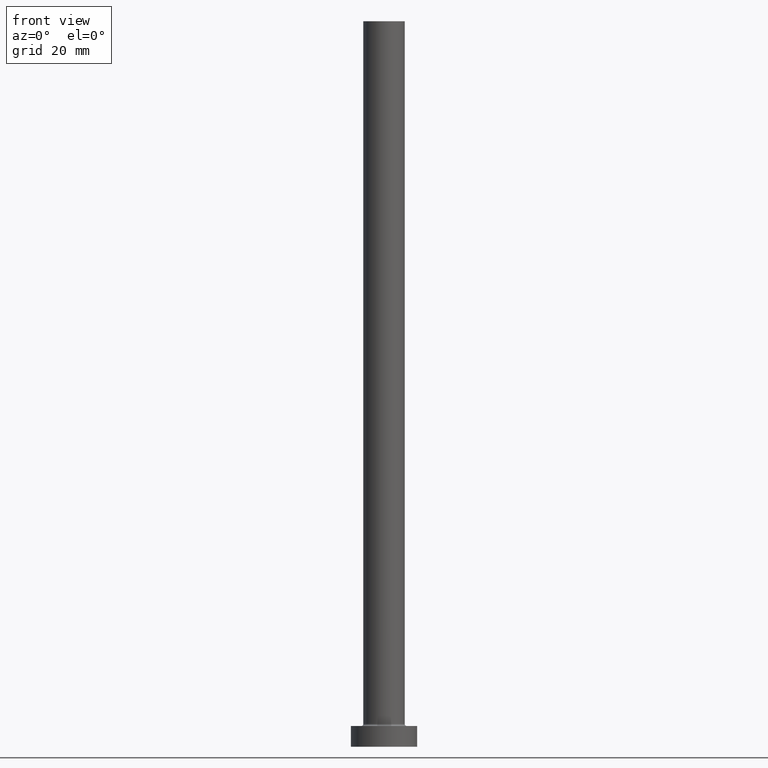
[diagram: clean part render]
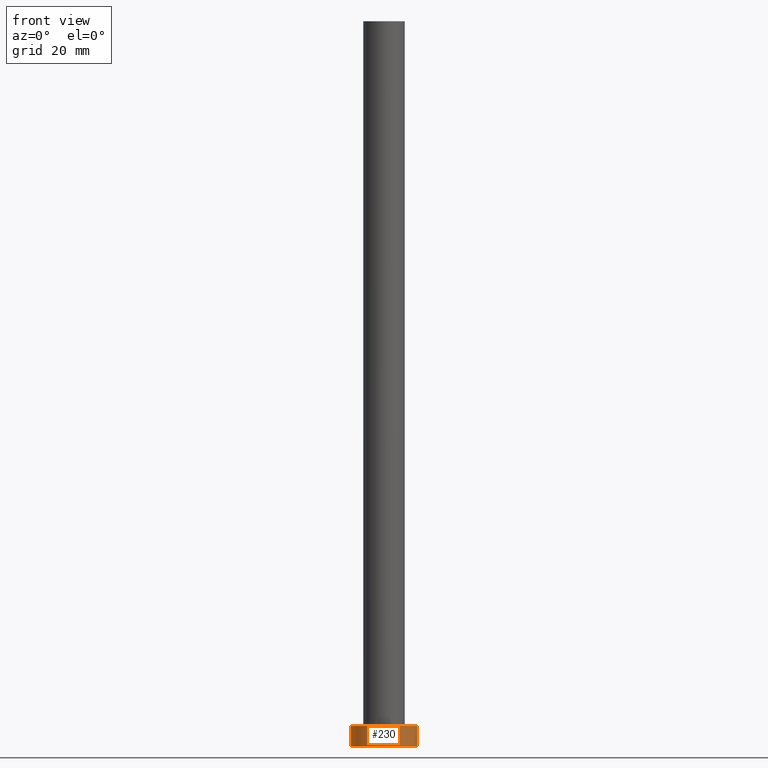
[diagram: same view with one face highlighted and labeled with its STEP entity id]
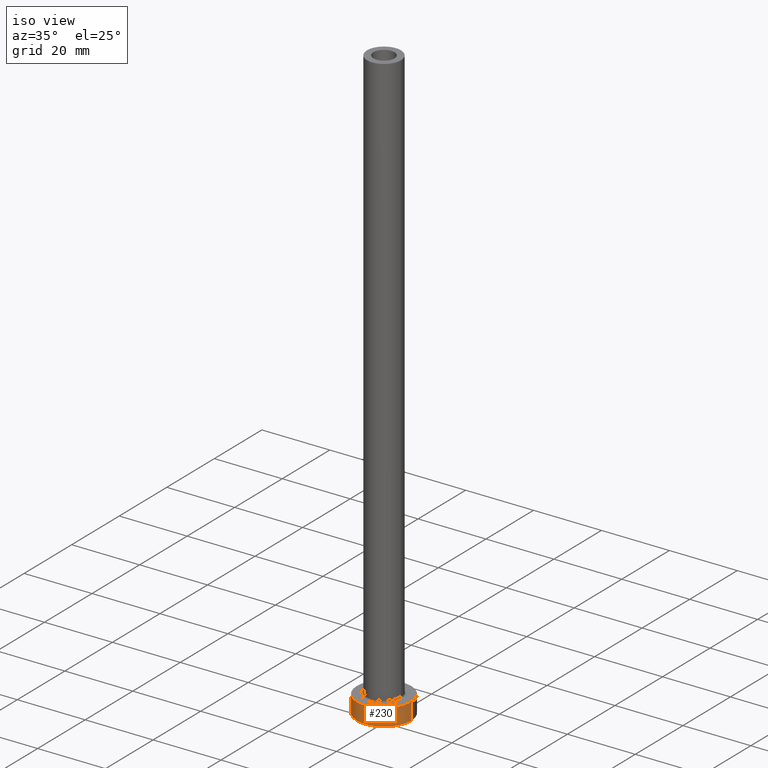
[diagram: same view with one face highlighted and labeled with its STEP entity id]
A machine part, front view. The second image highlights one B-rep face of the part: STEP entity #230.
A second angle (iso view) of the same face is appended — the face is thin or edge-on in the first view.
In plain terms, the highlighted cylindrical surface (edge-blend (fillet) strip) has radius 8 mm, axis along (-0, -0, -1).
Its self-contained STEP definition (entity closure, byte-faithful):
#11 = EDGE_CURVE ( 'NONE', #44, #209, #23, .T. ) ;
#16 = AXIS2_PLACEMENT_3D ( 'NONE', #232, #381, #244 ) ;
#20 = EDGE_LOOP ( 'NONE', ( #297, #198, #185, #277 ) ) ;
#23 = LINE ( 'NONE', #454, #210 ) ;
#41 = DIRECTION ( 'NONE',  ( -0.000000000000000000, -0.000000000000000000, -1.000000000000000000 ) ) ;
#43 = CARTESIAN_POINT ( 'NONE',  ( 0.000000000000000000, 0.000000000000000000, 0.000000000000000000 ) ) ;
#44 = VERTEX_POINT ( 'NONE', #423 ) ;
#50 = EDGE_CURVE ( 'NONE', #44, #380, #174, .T. ) ;
#69 = VECTOR ( 'NONE', #41, 1000.000000000000000 ) ;
#98 = DIRECTION ( 'NONE',  ( -0.000000000000000000, -0.000000000000000000, -1.000000000000000000 ) ) ;
#109 = CARTESIAN_POINT ( 'NONE',  ( 8.000000000000000000, 9.797174393178825657E-16, 5.000000000000000000 ) ) ;
#111 = CARTESIAN_POINT ( 'NONE',  ( 8.000000000000000000, 9.797174393178825657E-16, 5.000000000000000000 ) ) ;
#118 = LINE ( 'NONE', #111, #69 ) ;
#121 = DIRECTION ( 'NONE',  ( -1.000000000000000000, 0.000000000000000000, 0.000000000000000000 ) ) ;
#153 = CARTESIAN_POINT ( 'NONE',  ( 8.000000000000000000, 9.797174393178825657E-16, 0.000000000000000000 ) ) ;
#154 = EDGE_CURVE ( 'NONE', #380, #236, #118, .T. ) ;
#174 = CIRCLE ( 'NONE', #16, 8.000000000000000000 ) ;
#185 = ORIENTED_EDGE ( 'NONE', *, *, #11, .T. ) ;
#188 = FACE_OUTER_BOUND ( 'NONE', #20, .T. ) ;
#198 = ORIENTED_EDGE ( 'NONE', *, *, #50, .F. ) ;
#205 = EDGE_CURVE ( 'NONE', #209, #236, #387, .T. ) ;
#209 = VERTEX_POINT ( 'NONE', #332 ) ;
#210 = VECTOR ( 'NONE', #98, 1000.000000000000000 ) ;
#230 = ADVANCED_FACE ( 'NONE', ( #188 ), #429, .T. ) ;
#232 = CARTESIAN_POINT ( 'NONE',  ( 0.000000000000000000, 0.000000000000000000, 5.000000000000000000 ) ) ;
#236 = VERTEX_POINT ( 'NONE', #153 ) ;
#244 = DIRECTION ( 'NONE',  ( 1.000000000000000000, 0.000000000000000000, 0.000000000000000000 ) ) ;
#250 = DIRECTION ( 'NONE',  ( 0.000000000000000000, 0.000000000000000000, 1.000000000000000000 ) ) ;
#277 = ORIENTED_EDGE ( 'NONE', *, *, #205, .T. ) ;
#282 = DIRECTION ( 'NONE',  ( 1.000000000000000000, 0.000000000000000000, 0.000000000000000000 ) ) ;
#297 = ORIENTED_EDGE ( 'NONE', *, *, #154, .F. ) ;
#329 = DIRECTION ( 'NONE',  ( -0.000000000000000000, -0.000000000000000000, -1.000000000000000000 ) ) ;
#332 = CARTESIAN_POINT ( 'NONE',  ( -8.000000000000000000, 0.000000000000000000, 0.000000000000000000 ) ) ;
#335 = AXIS2_PLACEMENT_3D ( 'NONE', #43, #250, #282 ) ;
#380 = VERTEX_POINT ( 'NONE', #109 ) ;
#381 = DIRECTION ( 'NONE',  ( 0.000000000000000000, 0.000000000000000000, 1.000000000000000000 ) ) ;
#387 = CIRCLE ( 'NONE', #335, 8.000000000000000000 ) ;
#395 = AXIS2_PLACEMENT_3D ( 'NONE', #396, #329, #121 ) ;
#396 = CARTESIAN_POINT ( 'NONE',  ( 0.000000000000000000, 0.000000000000000000, 5.000000000000000000 ) ) ;
#423 = CARTESIAN_POINT ( 'NONE',  ( -8.000000000000000000, 0.000000000000000000, 5.000000000000000000 ) ) ;
#429 = CYLINDRICAL_SURFACE ( 'NONE', #395, 8.000000000000000000 ) ;
#454 = CARTESIAN_POINT ( 'NONE',  ( -8.000000000000000000, 0.000000000000000000, 5.000000000000000000 ) ) ;